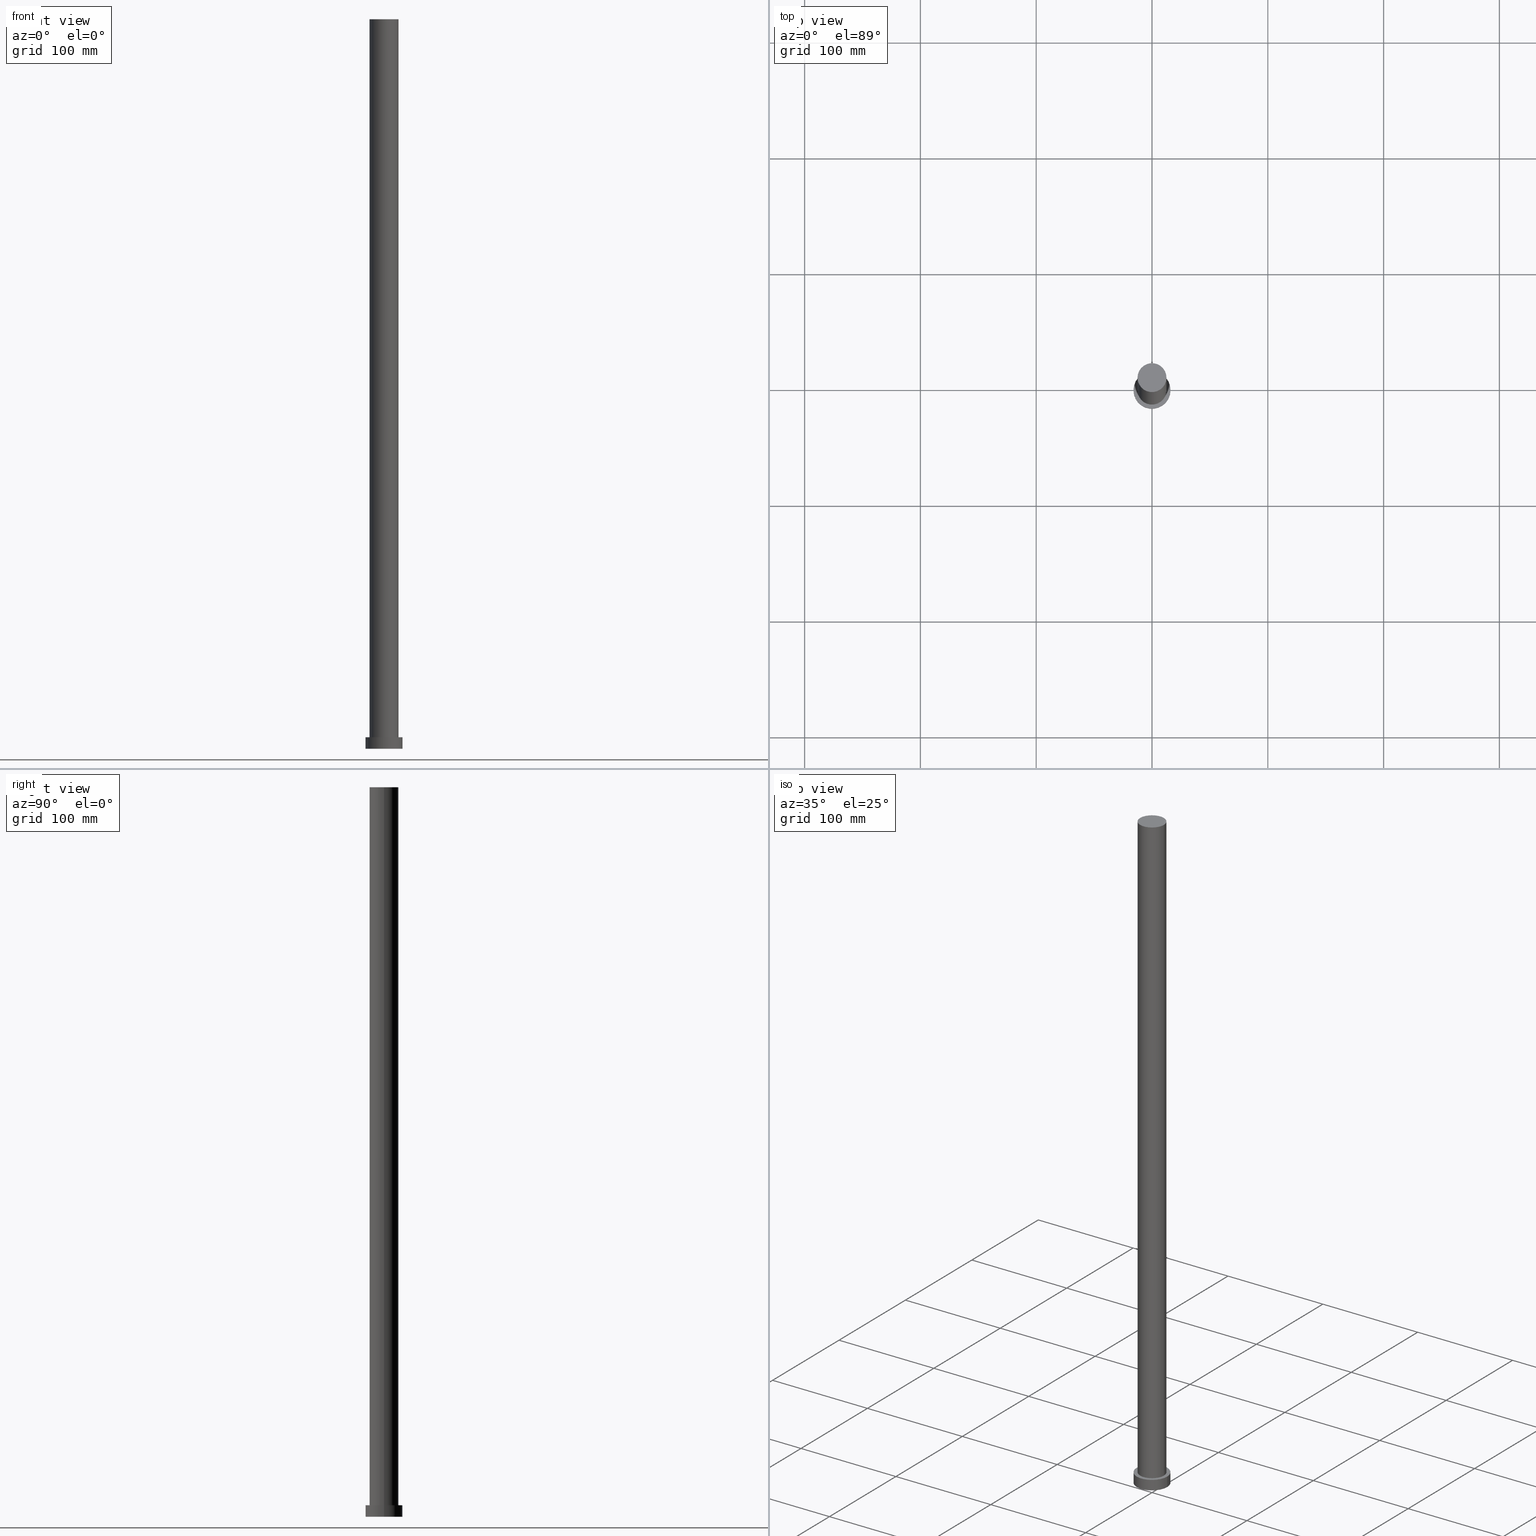
[diagram: canonical four-view strip — front | top / right | iso, engineering-drawing reading convention]
A machine part, canonical four-view strip (front | top / right | iso — engineering-drawing reading convention). The complete STEP part file that produces these views, byte-faithful:
ISO-10303-21;
HEADER;
FILE_DESCRIPTION (( 'STEP AP203' ),
    '1' );
FILE_NAME ('bb9b.STEP',
    '2023-02-12T10:28:15',
    ( '' ),
    ( '' ),
    'SwSTEP 2.0',
    'SolidWorks 2019',
    '' );
FILE_SCHEMA (( 'CONFIG_CONTROL_DESIGN' ));
ENDSEC;

DATA;
#1 = EDGE_LOOP ( 'NONE', ( #241, #160, #198, #139 ) ) ;
#2 = LOCAL_TIME ( 11, 28, 15.00000000000000000, #17 ) ;
#3 = CARTESIAN_POINT ( 'NONE',  ( -12.50000000000000000, 0.000000000000000000, 10.00000000000000000 ) ) ;
#4 = CC_DESIGN_PERSON_AND_ORGANIZATION_ASSIGNMENT ( #166, #251, ( #214 ) ) ;
#5 = CC_DESIGN_APPROVAL ( #230, ( #214 ) ) ;
#6 = ADVANCED_FACE ( 'NONE', ( #131 ), #169, .T. ) ;
#7 = AXIS2_PLACEMENT_3D ( 'NONE', #46, #123, #202 ) ;
#8 = LOCAL_TIME ( 11, 28, 15.00000000000000000, #185 ) ;
#9 = CALENDAR_DATE ( 2023, 12, 2 ) ;
#10 = CYLINDRICAL_SURFACE ( 'NONE', #208, 16.00000000000000000 ) ;
#11 = CC_DESIGN_PERSON_AND_ORGANIZATION_ASSIGNMENT ( #165, #73, ( #214 ) ) ;
#12 = DIRECTION ( 'NONE',  ( -1.000000000000000000, 0.000000000000000000, 0.000000000000000000 ) ) ;
#13 = CALENDAR_DATE ( 2023, 12, 2 ) ;
#14 = DIRECTION ( 'NONE',  ( 0.000000000000000000, 0.000000000000000000, 1.000000000000000000 ) ) ;
#15 = PERSON ( 'NEUR�EN�', 'NEUR�EN�', 'NEUR�EN�', ('NEUR�EN�'), ('NEUR�EN�'), ('NEUR�EN�') ) ;
#16 = EDGE_CURVE ( 'NONE', #23, #97, #172, .T. ) ;
#17 = COORDINATED_UNIVERSAL_TIME_OFFSET ( 1, 0, .AHEAD. ) ;
#18 = CARTESIAN_POINT ( 'NONE',  ( 0.000000000000000000, 0.000000000000000000, 10.00000000000000000 ) ) ;
#19 = DIRECTION ( 'NONE',  ( 1.000000000000000000, 0.000000000000000000, 0.000000000000000000 ) ) ;
#20 = AXIS2_PLACEMENT_3D ( 'NONE', #102, #121, #199 ) ;
#21 = EDGE_LOOP ( 'NONE', ( #40, #153, #135, #177 ) ) ;
#22 = CARTESIAN_POINT ( 'NONE',  ( 0.000000000000000000, 0.000000000000000000, 0.000000000000000000 ) ) ;
#23 = VERTEX_POINT ( 'NONE', #117 ) ;
#24 = CARTESIAN_POINT ( 'NONE',  ( -16.00000000000000000, 0.000000000000000000, 10.00000000000000000 ) ) ;
#25 = AXIS2_PLACEMENT_3D ( 'NONE', #18, #232, #112 ) ;
#26 = DIRECTION ( 'NONE',  ( -0.000000000000000000, -0.000000000000000000, -1.000000000000000000 ) ) ;
#27 = EDGE_CURVE ( 'NONE', #174, #170, #157, .T. ) ;
#28 = AXIS2_PLACEMENT_3D ( 'NONE', #132, #38, #116 ) ;
#29 = CARTESIAN_POINT ( 'NONE',  ( 12.50000000000000000, 1.530808498934191521E-15, 630.0000000000000000 ) ) ;
#30 = APPLICATION_PROTOCOL_DEFINITION ( 'international standard', 'config_control_design', 1994, #215 ) ;
#31 = EDGE_CURVE ( 'NONE', #170, #23, #98, .T. ) ;
#32 = AXIS2_PLACEMENT_3D ( 'NONE', #68, #124, #69 ) ;
#33 = LINE ( 'NONE', #82, #246 ) ;
#34 = APPLICATION_PROTOCOL_DEFINITION ( 'international standard', 'config_control_design', 1994, #233 ) ;
#35 = APPROVAL_DATE_TIME ( #250, #230 ) ;
#36 = DIRECTION ( 'NONE',  ( 1.000000000000000000, 0.000000000000000000, 0.000000000000000000 ) ) ;
#37 = PERSON_AND_ORGANIZATION ( #15, #127 ) ;
#38 = DIRECTION ( 'NONE',  ( 0.000000000000000000, 0.000000000000000000, 1.000000000000000000 ) ) ;
#39 = ORIENTED_EDGE ( 'NONE', *, *, #142, .F. ) ;
#40 = ORIENTED_EDGE ( 'NONE', *, *, #47, .F. ) ;
#41 = EDGE_LOOP ( 'NONE', ( #79, #239 ) ) ;
#42 = CC_DESIGN_APPROVAL ( #45, ( #148 ) ) ;
#43 = ORIENTED_EDGE ( 'NONE', *, *, #225, .F. ) ;
#44 = FACE_OUTER_BOUND ( 'NONE', #75, .T. ) ;
#45 = APPROVAL ( #89, 'NEUR�EN�' ) ;
#46 = CARTESIAN_POINT ( 'NONE',  ( 0.000000000000000000, 0.000000000000000000, 10.00000000000000000 ) ) ;
#47 = EDGE_CURVE ( 'NONE', #217, #253, #57, .T. ) ;
#48 = UNCERTAINTY_MEASURE_WITH_UNIT (LENGTH_MEASURE( 1.000000000000000082E-05 ), #175, 'distance_accuracy_value', 'NONE');
#49 = PERSON_AND_ORGANIZATION ( #15, #127 ) ;
#50 = DIRECTION ( 'NONE',  ( 1.000000000000000000, 0.000000000000000000, -0.000000000000000000 ) ) ;
#51 = CC_DESIGN_SECURITY_CLASSIFICATION ( #148, ( #214 ) ) ;
#52 = PERSON_AND_ORGANIZATION_ROLE ( 'design_owner' ) ;
#53 = CARTESIAN_POINT ( 'NONE',  ( 0.000000000000000000, 0.000000000000000000, 10.00000000000000000 ) ) ;
#54 = CALENDAR_DATE ( 2023, 12, 2 ) ;
#55 = CALENDAR_DATE ( 2023, 12, 2 ) ;
#56 = CARTESIAN_POINT ( 'NONE',  ( 0.000000000000000000, 0.000000000000000000, 10.00000000000000000 ) ) ;
#57 = LINE ( 'NONE', #61, #218 ) ;
#58 = VECTOR ( 'NONE', #156, 1000.000000000000000 ) ;
#59 = DIRECTION ( 'NONE',  ( 1.000000000000000000, 0.000000000000000000, -0.000000000000000000 ) ) ;
#60 = CARTESIAN_POINT ( 'NONE',  ( 0.000000000000000000, 0.000000000000000000, 630.0000000000000000 ) ) ;
#61 = CARTESIAN_POINT ( 'NONE',  ( 16.00000000000000000, 1.959434878635765131E-15, 10.00000000000000000 ) ) ;
#62 = EDGE_CURVE ( 'NONE', #136, #217, #243, .T. ) ;
#63 = ORIENTED_EDGE ( 'NONE', *, *, #16, .F. ) ;
#64 = ORIENTED_EDGE ( 'NONE', *, *, #133, .F. ) ;
#65 = PRODUCT_DEFINITION ( 'NEZN�M�', '', #214, #231 ) ;
#66 = DIRECTION ( 'NONE',  ( -0.000000000000000000, -0.000000000000000000, -1.000000000000000000 ) ) ;
#67 = CARTESIAN_POINT ( 'NONE',  ( 0.000000000000000000, 0.000000000000000000, 0.000000000000000000 ) ) ;
#68 = CARTESIAN_POINT ( 'NONE',  ( 0.000000000000000000, 0.000000000000000000, 0.000000000000000000 ) ) ;
#69 = DIRECTION ( 'NONE',  ( 1.000000000000000000, 0.000000000000000000, 0.000000000000000000 ) ) ;
#70 = AXIS2_PLACEMENT_3D ( 'NONE', #192, #114, #19 ) ;
#71 = FACE_BOUND ( 'NONE', #191, .T. ) ;
#72 = DIRECTION ( 'NONE',  ( -0.000000000000000000, -0.000000000000000000, -1.000000000000000000 ) ) ;
#73 = PERSON_AND_ORGANIZATION_ROLE ( 'design_supplier' ) ;
#74 = FACE_OUTER_BOUND ( 'NONE', #99, .T. ) ;
#75 = EDGE_LOOP ( 'NONE', ( #100, #161, #86, #43 ) ) ;
#76 = SECURITY_CLASSIFICATION_LEVEL ( 'unclassified' ) ;
#77 =( GEOMETRIC_REPRESENTATION_CONTEXT ( 3 ) GLOBAL_UNCERTAINTY_ASSIGNED_CONTEXT ( ( #48 ) ) GLOBAL_UNIT_ASSIGNED_CONTEXT ( ( #175, #194, #180 ) ) REPRESENTATION_CONTEXT ( 'NONE', 'WORKASPACE' ) );
#78 = APPROVAL_PERSON_ORGANIZATION ( #37, #184, #249 ) ;
#79 = ORIENTED_EDGE ( 'NONE', *, *, #27, .T. ) ;
#80 = CC_DESIGN_DATE_AND_TIME_ASSIGNMENT ( #96, #189, ( #65 ) ) ;
#81 = DIRECTION ( 'NONE',  ( -1.000000000000000000, 0.000000000000000000, 0.000000000000000000 ) ) ;
#82 = CARTESIAN_POINT ( 'NONE',  ( -16.00000000000000000, 0.000000000000000000, 10.00000000000000000 ) ) ;
#83 = LINE ( 'NONE', #137, #58 ) ;
#84 = VECTOR ( 'NONE', #238, 1000.000000000000000 ) ;
#85 = CIRCLE ( 'NONE', #149, 12.50000000000000000 ) ;
#86 = ORIENTED_EDGE ( 'NONE', *, *, #133, .T. ) ;
#87 = ADVANCED_FACE ( 'NONE', ( #158 ), #221, .T. ) ;
#88 = CC_DESIGN_PERSON_AND_ORGANIZATION_ASSIGNMENT ( #234, #209, ( #65 ) ) ;
#89 = APPROVAL_STATUS ( 'not_yet_approved' ) ;
#90 = PLANE ( 'NONE',  #106 ) ;
#91 = DIRECTION ( 'NONE',  ( 0.000000000000000000, 0.000000000000000000, 1.000000000000000000 ) ) ;
#92 = APPROVAL_STATUS ( 'not_yet_approved' ) ;
#93 = CARTESIAN_POINT ( 'NONE',  ( 16.00000000000000000, 1.959434878635765131E-15, 10.00000000000000000 ) ) ;
#94 = CIRCLE ( 'NONE', #204, 16.00000000000000000 ) ;
#95 = COORDINATED_UNIVERSAL_TIME_OFFSET ( 1, 0, .AHEAD. ) ;
#96 = DATE_AND_TIME ( #109, #110 ) ;
#97 = VERTEX_POINT ( 'NONE', #3 ) ;
#98 = LINE ( 'NONE', #190, #84 ) ;
#99 = EDGE_LOOP ( 'NONE', ( #245, #140 ) ) ;
#100 = ORIENTED_EDGE ( 'NONE', *, *, #203, .F. ) ;
#101 = CIRCLE ( 'NONE', #226, 16.00000000000000000 ) ;
#102 = CARTESIAN_POINT ( 'NONE',  ( 0.000000000000000000, 0.000000000000000000, 0.000000000000000000 ) ) ;
#103 = DIRECTION ( 'NONE',  ( 1.000000000000000000, 0.000000000000000000, -0.000000000000000000 ) ) ;
#104 = ORIENTED_EDGE ( 'NONE', *, *, #31, .T. ) ;
#105 = CYLINDRICAL_SURFACE ( 'NONE', #7, 16.00000000000000000 ) ;
#106 = AXIS2_PLACEMENT_3D ( 'NONE', #130, #152, #50 ) ;
#107 = CARTESIAN_POINT ( 'NONE',  ( -12.50000000000000000, 0.000000000000000000, 630.0000000000000000 ) ) ;
#108 = CC_DESIGN_PERSON_AND_ORGANIZATION_ASSIGNMENT ( #236, #52, ( #213 ) ) ;
#109 = CALENDAR_DATE ( 2023, 12, 2 ) ;
#110 = LOCAL_TIME ( 11, 28, 15.00000000000000000, #151 ) ;
#111 = DATE_AND_TIME ( #54, #2 ) ;
#112 = DIRECTION ( 'NONE',  ( 1.000000000000000000, 0.000000000000000000, 0.000000000000000000 ) ) ;
#113 = APPROVAL_ROLE ( '' ) ;
#114 = DIRECTION ( 'NONE',  ( 0.000000000000000000, 0.000000000000000000, 1.000000000000000000 ) ) ;
#115 = DATE_AND_TIME ( #55, #181 ) ;
#116 = DIRECTION ( 'NONE',  ( 1.000000000000000000, 0.000000000000000000, 0.000000000000000000 ) ) ;
#117 = CARTESIAN_POINT ( 'NONE',  ( 12.50000000000000000, 1.530808498934191521E-15, 10.00000000000000000 ) ) ;
#118 = VERTEX_POINT ( 'NONE', #178 ) ;
#119 = DIRECTION ( 'NONE',  ( 0.000000000000000000, 0.000000000000000000, 1.000000000000000000 ) ) ;
#120 = ORIENTED_EDGE ( 'NONE', *, *, #16, .T. ) ;
#121 = DIRECTION ( 'NONE',  ( 0.000000000000000000, 0.000000000000000000, 1.000000000000000000 ) ) ;
#122 = AXIS2_PLACEMENT_3D ( 'NONE', #207, #235, #59 ) ;
#123 = DIRECTION ( 'NONE',  ( -0.000000000000000000, -0.000000000000000000, -1.000000000000000000 ) ) ;
#124 = DIRECTION ( 'NONE',  ( 0.000000000000000000, 0.000000000000000000, 1.000000000000000000 ) ) ;
#125 = APPROVAL_STATUS ( 'not_yet_approved' ) ;
#126 = CLOSED_SHELL ( 'NONE', ( #87, #167, #179, #188, #147, #6, #176 ) ) ;
#127 = ORGANIZATION ( 'NEUR�EN�', 'NEUR�EN�', '' ) ;
#128 = CC_DESIGN_PERSON_AND_ORGANIZATION_ASSIGNMENT ( #150, #145, ( #148 ) ) ;
#129 = DATE_TIME_ROLE ( 'classification_date' ) ;
#130 = CARTESIAN_POINT ( 'NONE',  ( 0.000000000000000000, 0.000000000000000000, 10.00000000000000000 ) ) ;
#131 = FACE_OUTER_BOUND ( 'NONE', #1, .T. ) ;
#132 = CARTESIAN_POINT ( 'NONE',  ( 0.000000000000000000, 0.000000000000000000, 10.00000000000000000 ) ) ;
#133 = EDGE_CURVE ( 'NONE', #253, #118, #94, .T. ) ;
#134 = FACE_OUTER_BOUND ( 'NONE', #41, .T. ) ;
#135 = ORIENTED_EDGE ( 'NONE', *, *, #225, .T. ) ;
#136 = VERTEX_POINT ( 'NONE', #24 ) ;
#137 = CARTESIAN_POINT ( 'NONE',  ( -12.50000000000000000, 0.000000000000000000, 630.0000000000000000 ) ) ;
#138 = AXIS2_PLACEMENT_3D ( 'NONE', #201, #26, #81 ) ;
#139 = ORIENTED_EDGE ( 'NONE', *, *, #220, .T. ) ;
#140 = ORIENTED_EDGE ( 'NONE', *, *, #203, .T. ) ;
#141 = AXIS2_PLACEMENT_3D ( 'NONE', #60, #72, #12 ) ;
#142 = EDGE_CURVE ( 'NONE', #174, #97, #83, .T. ) ;
#143 = CC_DESIGN_APPROVAL ( #184, ( #65 ) ) ;
#144 = ORIENTED_EDGE ( 'NONE', *, *, #252, .F. ) ;
#145 = PERSON_AND_ORGANIZATION_ROLE ( 'classification_officer' ) ;
#146 = DIRECTION ( 'NONE',  ( -1.000000000000000000, 0.000000000000000000, 0.000000000000000000 ) ) ;
#147 = ADVANCED_FACE ( 'NONE', ( #242 ), #195, .F. ) ;
#148 = SECURITY_CLASSIFICATION ( '', '', #76 ) ;
#149 = AXIS2_PLACEMENT_3D ( 'NONE', #154, #91, #36 ) ;
#150 = PERSON_AND_ORGANIZATION ( #15, #127 ) ;
#151 = COORDINATED_UNIVERSAL_TIME_OFFSET ( 1, 0, .AHEAD. ) ;
#152 = DIRECTION ( 'NONE',  ( 0.000000000000000000, 0.000000000000000000, 1.000000000000000000 ) ) ;
#153 = ORIENTED_EDGE ( 'NONE', *, *, #62, .F. ) ;
#154 = CARTESIAN_POINT ( 'NONE',  ( 0.000000000000000000, 0.000000000000000000, 630.0000000000000000 ) ) ;
#155 = EDGE_LOOP ( 'NONE', ( #216, #104, #120, #39 ) ) ;
#156 = DIRECTION ( 'NONE',  ( -0.000000000000000000, -0.000000000000000000, -1.000000000000000000 ) ) ;
#157 = CIRCLE ( 'NONE', #70, 12.50000000000000000 ) ;
#158 = FACE_OUTER_BOUND ( 'NONE', #155, .T. ) ;
#159 = APPROVAL_PERSON_ORGANIZATION ( #49, #230, #187 ) ;
#160 = ORIENTED_EDGE ( 'NONE', *, *, #27, .F. ) ;
#161 = ORIENTED_EDGE ( 'NONE', *, *, #47, .T. ) ;
#162 = MECHANICAL_CONTEXT ( 'NONE', #215, 'mechanical' ) ;
#163 = COORDINATED_UNIVERSAL_TIME_OFFSET ( 1, 0, .AHEAD. ) ;
#164 = PRODUCT_DEFINITION_SHAPE ( 'NONE', 'NONE',  #65 ) ;
#165 = PERSON_AND_ORGANIZATION ( #15, #127 ) ;
#166 = PERSON_AND_ORGANIZATION ( #15, #127 ) ;
#167 = ADVANCED_FACE ( 'NONE', ( #44 ), #105, .T. ) ;
#168 = APPROVAL_DATE_TIME ( #115, #45 ) ;
#169 = CYLINDRICAL_SURFACE ( 'NONE', #141, 12.50000000000000000 ) ;
#170 = VERTEX_POINT ( 'NONE', #29 ) ;
#171 = DIRECTION ( 'NONE',  ( -0.000000000000000000, -0.000000000000000000, -1.000000000000000000 ) ) ;
#172 = CIRCLE ( 'NONE', #25, 12.50000000000000000 ) ;
#173 = DIRECTION ( 'NONE',  ( 0.000000000000000000, 0.000000000000000000, 1.000000000000000000 ) ) ;
#174 = VERTEX_POINT ( 'NONE', #107 ) ;
#175 =( LENGTH_UNIT ( ) NAMED_UNIT ( * ) SI_UNIT ( .MILLI., .METRE. ) );
#176 = ADVANCED_FACE ( 'NONE', ( #134 ), #229, .T. ) ;
#177 = ORIENTED_EDGE ( 'NONE', *, *, #252, .T. ) ;
#178 = CARTESIAN_POINT ( 'NONE',  ( -16.00000000000000000, 0.000000000000000000, 0.000000000000000000 ) ) ;
#179 = ADVANCED_FACE ( 'NONE', ( #240 ), #10, .T. ) ;
#180 =( NAMED_UNIT ( * ) SI_UNIT ( $, .STERADIAN. ) SOLID_ANGLE_UNIT ( ) );
#181 = LOCAL_TIME ( 11, 28, 15.00000000000000000, #163 ) ;
#182 = CIRCLE ( 'NONE', #20, 16.00000000000000000 ) ;
#183 = ORIENTED_EDGE ( 'NONE', *, *, #220, .F. ) ;
#184 = APPROVAL ( #125, 'NEUR�EN�' ) ;
#185 = COORDINATED_UNIVERSAL_TIME_OFFSET ( 1, 0, .AHEAD. ) ;
#186 = APPROVAL_DATE_TIME ( #111, #184 ) ;
#187 = APPROVAL_ROLE ( '' ) ;
#188 = ADVANCED_FACE ( 'NONE', ( #71, #74 ), #90, .T. ) ;
#189 = DATE_TIME_ROLE ( 'creation_date' ) ;
#190 = CARTESIAN_POINT ( 'NONE',  ( 12.50000000000000000, 1.530808498934191521E-15, 630.0000000000000000 ) ) ;
#191 = EDGE_LOOP ( 'NONE', ( #183, #63 ) ) ;
#192 = CARTESIAN_POINT ( 'NONE',  ( 0.000000000000000000, 0.000000000000000000, 630.0000000000000000 ) ) ;
#193 = DIRECTION ( 'NONE',  ( 1.000000000000000000, 0.000000000000000000, 0.000000000000000000 ) ) ;
#194 =( NAMED_UNIT ( * ) PLANE_ANGLE_UNIT ( ) SI_UNIT ( $, .RADIAN. ) );
#195 = PLANE ( 'NONE',  #200 ) ;
#196 = CARTESIAN_POINT ( 'NONE',  ( 0.000000000000000000, 0.000000000000000000, 10.00000000000000000 ) ) ;
#197 = EDGE_CURVE ( 'NONE', #170, #174, #85, .T. ) ;
#198 = ORIENTED_EDGE ( 'NONE', *, *, #142, .T. ) ;
#199 = DIRECTION ( 'NONE',  ( 1.000000000000000000, 0.000000000000000000, 0.000000000000000000 ) ) ;
#200 = AXIS2_PLACEMENT_3D ( 'NONE', #22, #173, #103 ) ;
#201 = CARTESIAN_POINT ( 'NONE',  ( 0.000000000000000000, 0.000000000000000000, 630.0000000000000000 ) ) ;
#202 = DIRECTION ( 'NONE',  ( -1.000000000000000000, 0.000000000000000000, 0.000000000000000000 ) ) ;
#203 = EDGE_CURVE ( 'NONE', #217, #136, #101, .T. ) ;
#204 = AXIS2_PLACEMENT_3D ( 'NONE', #67, #223, #254 ) ;
#205 = APPROVAL_PERSON_ORGANIZATION ( #211, #45, #113 ) ;
#206 = MANIFOLD_SOLID_BREP ( 'P�idat vysunut�m3', #126 ) ;
#207 = CARTESIAN_POINT ( 'NONE',  ( 0.000000000000000000, 0.000000000000000000, 630.0000000000000000 ) ) ;
#208 = AXIS2_PLACEMENT_3D ( 'NONE', #53, #210, #146 ) ;
#209 = PERSON_AND_ORGANIZATION_ROLE ( 'creator' ) ;
#210 = DIRECTION ( 'NONE',  ( -0.000000000000000000, -0.000000000000000000, -1.000000000000000000 ) ) ;
#211 = PERSON_AND_ORGANIZATION ( #15, #127 ) ;
#212 = SHAPE_DEFINITION_REPRESENTATION ( #164, #227 ) ;
#213 = PRODUCT ( 'bb9b', 'bb9b', '', ( #162 ) ) ;
#214 = PRODUCT_DEFINITION_FORMATION_WITH_SPECIFIED_SOURCE ( 'LIBOVOLN�', '', #213, .NOT_KNOWN. ) ;
#215 = APPLICATION_CONTEXT ( 'configuration controlled 3d designs of mechanical parts and assemblies' ) ;
#216 = ORIENTED_EDGE ( 'NONE', *, *, #197, .F. ) ;
#217 = VERTEX_POINT ( 'NONE', #93 ) ;
#218 = VECTOR ( 'NONE', #66, 1000.000000000000000 ) ;
#219 = CARTESIAN_POINT ( 'NONE',  ( 16.00000000000000000, 1.959434878635765131E-15, 0.000000000000000000 ) ) ;
#220 = EDGE_CURVE ( 'NONE', #97, #23, #248, .T. ) ;
#221 = CYLINDRICAL_SURFACE ( 'NONE', #138, 12.50000000000000000 ) ;
#222 = EDGE_LOOP ( 'NONE', ( #144, #64 ) ) ;
#223 = DIRECTION ( 'NONE',  ( 0.000000000000000000, 0.000000000000000000, 1.000000000000000000 ) ) ;
#224 = CC_DESIGN_DATE_AND_TIME_ASSIGNMENT ( #228, #129, ( #148 ) ) ;
#225 = EDGE_CURVE ( 'NONE', #136, #118, #33, .T. ) ;
#226 = AXIS2_PLACEMENT_3D ( 'NONE', #56, #14, #237 ) ;
#227 = ADVANCED_BREP_SHAPE_REPRESENTATION ( 'bb9b', ( #206, #32 ), #77 ) ;
#228 = DATE_AND_TIME ( #9, #244 ) ;
#229 = PLANE ( 'NONE',  #122 ) ;
#230 = APPROVAL ( #92, 'NEUR�EN�' ) ;
#231 = DESIGN_CONTEXT ( 'detailed design', #233, 'design' ) ;
#232 = DIRECTION ( 'NONE',  ( 0.000000000000000000, 0.000000000000000000, 1.000000000000000000 ) ) ;
#233 = APPLICATION_CONTEXT ( 'configuration controlled 3d designs of mechanical parts and assemblies' ) ;
#234 = PERSON_AND_ORGANIZATION ( #15, #127 ) ;
#235 = DIRECTION ( 'NONE',  ( 0.000000000000000000, 0.000000000000000000, 1.000000000000000000 ) ) ;
#236 = PERSON_AND_ORGANIZATION ( #15, #127 ) ;
#237 = DIRECTION ( 'NONE',  ( 1.000000000000000000, 0.000000000000000000, 0.000000000000000000 ) ) ;
#238 = DIRECTION ( 'NONE',  ( -0.000000000000000000, -0.000000000000000000, -1.000000000000000000 ) ) ;
#239 = ORIENTED_EDGE ( 'NONE', *, *, #197, .T. ) ;
#240 = FACE_OUTER_BOUND ( 'NONE', #21, .T. ) ;
#241 = ORIENTED_EDGE ( 'NONE', *, *, #31, .F. ) ;
#242 = FACE_OUTER_BOUND ( 'NONE', #222, .T. ) ;
#243 = CIRCLE ( 'NONE', #247, 16.00000000000000000 ) ;
#244 = LOCAL_TIME ( 11, 28, 15.00000000000000000, #95 ) ;
#245 = ORIENTED_EDGE ( 'NONE', *, *, #62, .T. ) ;
#246 = VECTOR ( 'NONE', #171, 1000.000000000000000 ) ;
#247 = AXIS2_PLACEMENT_3D ( 'NONE', #196, #119, #193 ) ;
#248 = CIRCLE ( 'NONE', #28, 12.50000000000000000 ) ;
#249 = APPROVAL_ROLE ( '' ) ;
#250 = DATE_AND_TIME ( #13, #8 ) ;
#251 = PERSON_AND_ORGANIZATION_ROLE ( 'creator' ) ;
#252 = EDGE_CURVE ( 'NONE', #118, #253, #182, .T. ) ;
#253 = VERTEX_POINT ( 'NONE', #219 ) ;
#254 = DIRECTION ( 'NONE',  ( 1.000000000000000000, 0.000000000000000000, 0.000000000000000000 ) ) ;
#255 = PRODUCT_RELATED_PRODUCT_CATEGORY ( 'detail', '', ( #213 ) ) ;
ENDSEC;
END-ISO-10303-21;
